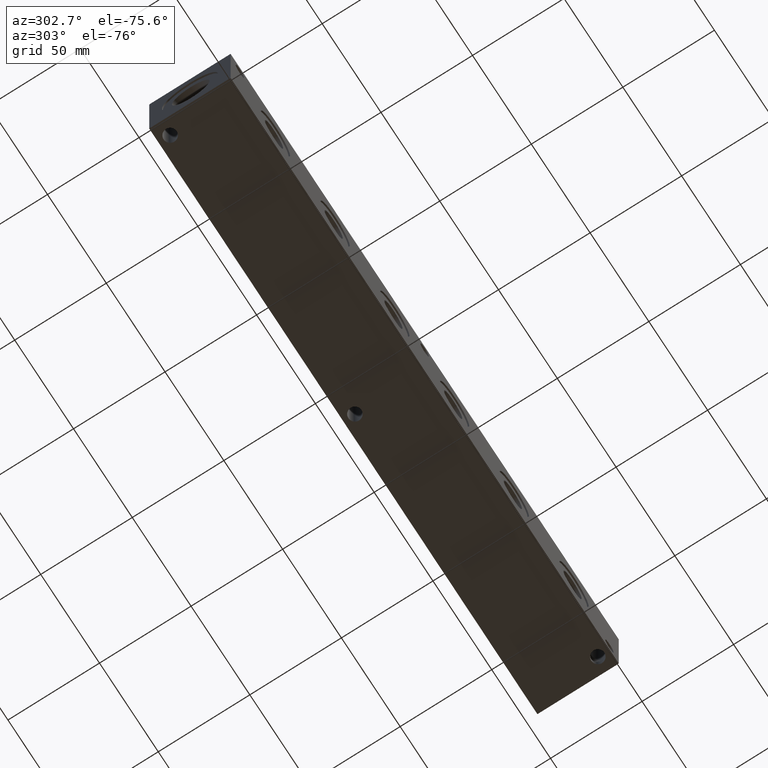
[diagram: clean part render]
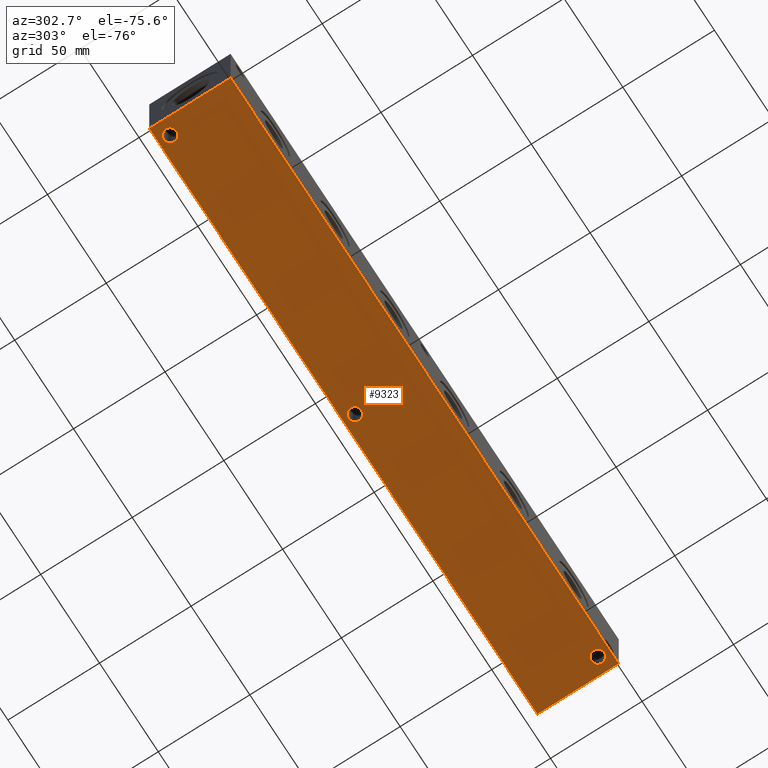
[diagram: same view with one face highlighted and labeled with its STEP entity id]
A machine part, auxiliary view. The second image highlights one B-rep face of the part: STEP entity #9323.
In plain terms, the highlighted planar face has unit normal (0, 0, 1).
Its self-contained STEP definition (entity closure, byte-faithful):
#311=CIRCLE('',#9783,3.5687);
#312=CIRCLE('',#9785,3.5687);
#313=CIRCLE('',#9787,3.5687);
#506=FACE_BOUND('',#1968,.T.);
#507=FACE_BOUND('',#1969,.T.);
#508=FACE_BOUND('',#1970,.T.);
#1406=FACE_OUTER_BOUND('',#1967,.T.);
#1967=EDGE_LOOP('',(#8298,#8299,#8300,#8301));
#1968=EDGE_LOOP('',(#8302));
#1969=EDGE_LOOP('',(#8303));
#1970=EDGE_LOOP('',(#8304));
#2707=LINE('',#16574,#3451);
#2710=LINE('',#16579,#3454);
#2712=LINE('',#16583,#3456);
#2714=LINE('',#16586,#3458);
#3451=VECTOR('',#11980,10.);
#3454=VECTOR('',#11985,10.);
#3456=VECTOR('',#11989,10.);
#3458=VECTOR('',#11993,10.);
#4230=VERTEX_POINT('',#16210);
#4231=VERTEX_POINT('',#16214);
#4232=VERTEX_POINT('',#16218);
#4347=VERTEX_POINT('',#16572);
#4348=VERTEX_POINT('',#16573);
#4349=VERTEX_POINT('',#16578);
#4350=VERTEX_POINT('',#16582);
#5490=EDGE_CURVE('',#4230,#4230,#311,.T.);
#5492=EDGE_CURVE('',#4231,#4231,#312,.T.);
#5494=EDGE_CURVE('',#4232,#4232,#313,.T.);
#5661=EDGE_CURVE('',#4347,#4348,#2707,.T.);
#5664=EDGE_CURVE('',#4349,#4347,#2710,.T.);
#5666=EDGE_CURVE('',#4350,#4349,#2712,.T.);
#5668=EDGE_CURVE('',#4348,#4350,#2714,.T.);
#8298=ORIENTED_EDGE('',*,*,#5668,.F.);
#8299=ORIENTED_EDGE('',*,*,#5661,.F.);
#8300=ORIENTED_EDGE('',*,*,#5664,.F.);
#8301=ORIENTED_EDGE('',*,*,#5666,.F.);
#8302=ORIENTED_EDGE('',*,*,#5490,.T.);
#8303=ORIENTED_EDGE('',*,*,#5492,.T.);
#8304=ORIENTED_EDGE('',*,*,#5494,.T.);
#8530=PLANE('',#9975);
#9323=ADVANCED_FACE('',(#1406,#506,#507,#508),#8530,.F.);
#9783=AXIS2_PLACEMENT_3D('',#16212,#11548,#11549);
#9785=AXIS2_PLACEMENT_3D('',#16216,#11553,#11554);
#9787=AXIS2_PLACEMENT_3D('',#16220,#11558,#11559);
#9975=AXIS2_PLACEMENT_3D('',#16588,#11996,#11997);
#11548=DIRECTION('center_axis',(0.,0.,1.));
#11549=DIRECTION('ref_axis',(1.,0.,0.));
#11553=DIRECTION('center_axis',(0.,0.,1.));
#11554=DIRECTION('ref_axis',(1.,0.,0.));
#11558=DIRECTION('center_axis',(0.,0.,1.));
#11559=DIRECTION('ref_axis',(1.,0.,0.));
#11980=DIRECTION('',(0.,-1.,0.));
#11985=DIRECTION('',(-1.,0.,0.));
#11989=DIRECTION('',(0.,1.,0.));
#11993=DIRECTION('',(1.,0.,0.));
#11996=DIRECTION('center_axis',(0.,0.,1.));
#11997=DIRECTION('ref_axis',(1.,0.,0.));
#16210=CARTESIAN_POINT('',(318.7065,6.35,0.));
#16212=CARTESIAN_POINT('Origin',(322.2752,6.35,0.));
#16214=CARTESIAN_POINT('',(4.3561,38.1,0.));
#16216=CARTESIAN_POINT('Origin',(7.9248,38.1,0.));
#16218=CARTESIAN_POINT('',(161.5313,38.1,0.));
#16220=CARTESIAN_POINT('Origin',(165.1,38.1,0.));
#16572=CARTESIAN_POINT('',(0.,44.45,0.));
#16573=CARTESIAN_POINT('',(0.,0.,0.));
#16574=CARTESIAN_POINT('',(0.,44.45,0.));
#16578=CARTESIAN_POINT('',(330.2,44.45,0.));
#16579=CARTESIAN_POINT('',(330.2,44.45,0.));
#16582=CARTESIAN_POINT('',(330.2,0.,0.));
#16583=CARTESIAN_POINT('',(330.2,0.,0.));
#16586=CARTESIAN_POINT('',(0.,0.,0.));
#16588=CARTESIAN_POINT('Origin',(165.1,22.225,0.));